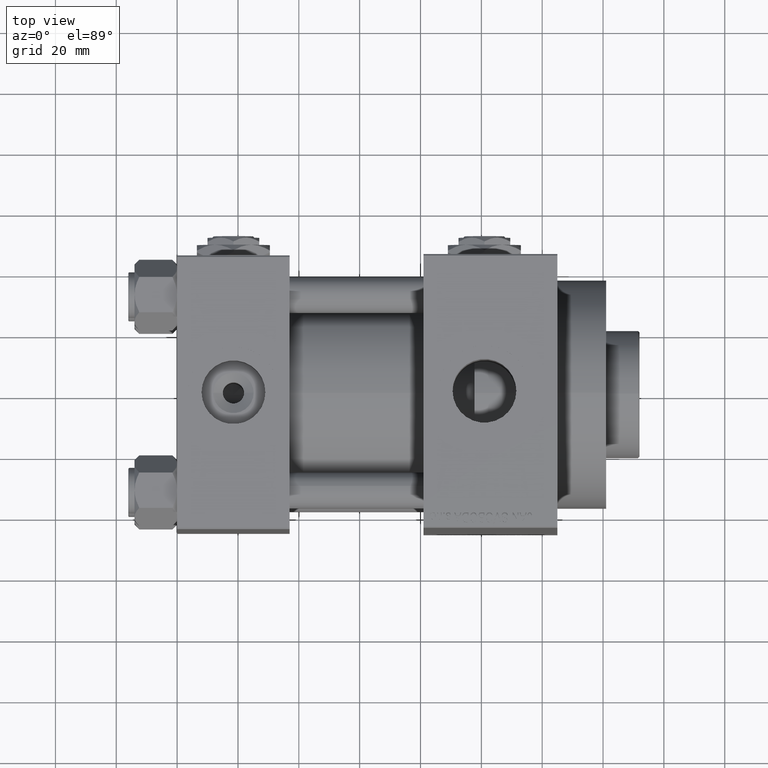
[diagram: clean part render]
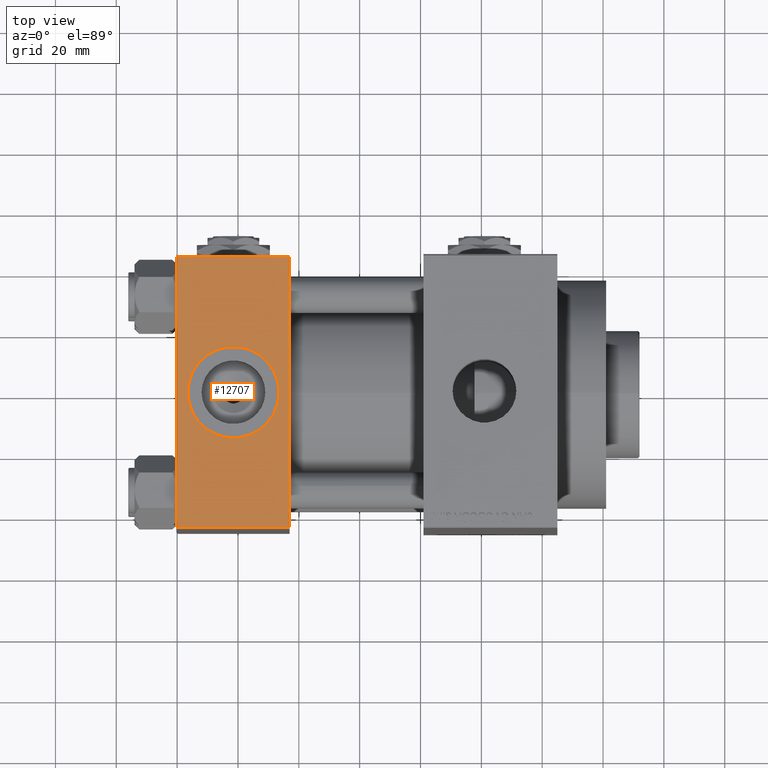
[diagram: same view with one face highlighted and labeled with its STEP entity id]
A machine part, top view. The second image highlights one B-rep face of the part: STEP entity #12707.
In plain terms, the highlighted planar face has unit normal (0, 0, -1).
Its self-contained STEP definition (entity closure, byte-faithful):
#1559 = DIRECTION ( 'NONE',  ( 1.000000000000000000, 0.000000000000000000, 0.000000000000000000 ) ) ;
#1769 = EDGE_LOOP ( 'NONE', ( #3056, #28158, #31168, #22283 ) ) ;
#3056 = ORIENTED_EDGE ( 'NONE', *, *, #36208, .T. ) ;
#5021 = CIRCLE ( 'NONE', #38440, 15.00000000000000355 ) ;
#5028 = CARTESIAN_POINT ( 'NONE',  ( 18.50000000000000000, -8.673617379884038628E-15, 45.00000000000000711 ) ) ;
#5487 = FACE_OUTER_BOUND ( 'NONE', #1769, .T. ) ;
#5723 = CARTESIAN_POINT ( 'NONE',  ( 37.00000000000000000, 44.99999999999998579, 45.00000000000001421 ) ) ;
#5975 = PLANE ( 'NONE',  #48539 ) ;
#6228 = FACE_BOUND ( 'NONE', #44882, .T. ) ;
#7208 = DIRECTION ( 'NONE',  ( 1.000000000000000000, 0.000000000000000000, 0.000000000000000000 ) ) ;
#8128 = DIRECTION ( 'NONE',  ( -1.000000000000000000, 0.000000000000000000, 0.000000000000000000 ) ) ;
#8177 = VECTOR ( 'NONE', #8128, 1000.000000000000000 ) ;
#10007 = CARTESIAN_POINT ( 'NONE',  ( 3.499999999999997780, -6.836647181163008250E-15, 45.00000000000000711 ) ) ;
#10283 = LINE ( 'NONE', #29232, #11409 ) ;
#10541 = VERTEX_POINT ( 'NONE', #10007 ) ;
#11409 = VECTOR ( 'NONE', #24990, 1000.000000000000000 ) ;
#12628 = ORIENTED_EDGE ( 'NONE', *, *, #30422, .F. ) ;
#12707 = ADVANCED_FACE ( 'NONE', ( #6228, #5487 ), #5975, .F. ) ;
#13887 = DIRECTION ( 'NONE',  ( 1.000000000000000000, 0.000000000000000000, 0.000000000000000000 ) ) ;
#15419 = CARTESIAN_POINT ( 'NONE',  ( 37.00000000000000000, -44.49999999999998579, 45.00000000000000000 ) ) ;
#16343 = EDGE_CURVE ( 'NONE', #32679, #34889, #34317, .T. ) ;
#16889 = VECTOR ( 'NONE', #39880, 1000.000000000000000 ) ;
#17610 = CARTESIAN_POINT ( 'NONE',  ( 0.000000000000000000, 44.49999999999998579, 45.00000000000001421 ) ) ;
#17893 = AXIS2_PLACEMENT_3D ( 'NONE', #5028, #35702, #1559 ) ;
#18905 = LINE ( 'NONE', #15419, #25055 ) ;
#19529 = CARTESIAN_POINT ( 'NONE',  ( 37.00000000000000000, -44.49999999999995737, 45.00000000000000000 ) ) ;
#21174 = DIRECTION ( 'NONE',  ( 0.000000000000000000, 1.541976423090495633E-16, -1.000000000000000000 ) ) ;
#22283 = ORIENTED_EDGE ( 'NONE', *, *, #16343, .T. ) ;
#24990 = DIRECTION ( 'NONE',  ( 0.000000000000000000, -1.000000000000000000, -1.541976423090495387E-16 ) ) ;
#25055 = VECTOR ( 'NONE', #7208, 1000.000000000000000 ) ;
#28158 = ORIENTED_EDGE ( 'NONE', *, *, #37503, .T. ) ;
#28251 = CIRCLE ( 'NONE', #17893, 15.00000000000000355 ) ;
#28414 = DIRECTION ( 'NONE',  ( 0.000000000000000000, 1.000000000000000000, 1.541976423090495633E-16 ) ) ;
#29232 = CARTESIAN_POINT ( 'NONE',  ( 0.000000000000000000, 44.99999999999998579, 45.00000000000001421 ) ) ;
#30016 = EDGE_CURVE ( 'NONE', #32679, #32434, #34672, .T. ) ;
#30422 = EDGE_CURVE ( 'NONE', #32990, #10541, #5021, .T. ) ;
#31168 = ORIENTED_EDGE ( 'NONE', *, *, #30016, .F. ) ;
#32434 = VERTEX_POINT ( 'NONE', #19529 ) ;
#32679 = VERTEX_POINT ( 'NONE', #45924 ) ;
#32990 = VERTEX_POINT ( 'NONE', #36918 ) ;
#34317 = LINE ( 'NONE', #35063, #8177 ) ;
#34672 = LINE ( 'NONE', #42646, #16889 ) ;
#34889 = VERTEX_POINT ( 'NONE', #17610 ) ;
#35063 = CARTESIAN_POINT ( 'NONE',  ( 0.000000000000000000, 44.49999999999998579, 45.00000000000001421 ) ) ;
#35702 = DIRECTION ( 'NONE',  ( 0.000000000000000000, 0.000000000000000000, 1.000000000000000000 ) ) ;
#36208 = EDGE_CURVE ( 'NONE', #34889, #45599, #10283, .T. ) ;
#36918 = CARTESIAN_POINT ( 'NONE',  ( 33.50000000000000000, -8.673617379884038628E-15, 45.00000000000000711 ) ) ;
#37503 = EDGE_CURVE ( 'NONE', #45599, #32434, #18905, .T. ) ;
#38440 = AXIS2_PLACEMENT_3D ( 'NONE', #48062, #40594, #13887 ) ;
#38980 = EDGE_CURVE ( 'NONE', #10541, #32990, #28251, .T. ) ;
#39880 = DIRECTION ( 'NONE',  ( 0.000000000000000000, -1.000000000000000000, -1.541976423090495387E-16 ) ) ;
#40594 = DIRECTION ( 'NONE',  ( 0.000000000000000000, 0.000000000000000000, 1.000000000000000000 ) ) ;
#42646 = CARTESIAN_POINT ( 'NONE',  ( 37.00000000000000000, 44.99999999999998579, 45.00000000000001421 ) ) ;
#44684 = CARTESIAN_POINT ( 'NONE',  ( 0.000000000000000000, -44.49999999999995737, 45.00000000000000000 ) ) ;
#44882 = EDGE_LOOP ( 'NONE', ( #12628, #45361 ) ) ;
#45361 = ORIENTED_EDGE ( 'NONE', *, *, #38980, .F. ) ;
#45599 = VERTEX_POINT ( 'NONE', #44684 ) ;
#45924 = CARTESIAN_POINT ( 'NONE',  ( 37.00000000000000000, 44.49999999999998579, 45.00000000000001421 ) ) ;
#48062 = CARTESIAN_POINT ( 'NONE',  ( 18.50000000000000000, -8.673617379884038628E-15, 45.00000000000000711 ) ) ;
#48539 = AXIS2_PLACEMENT_3D ( 'NONE', #5723, #21174, #28414 ) ;